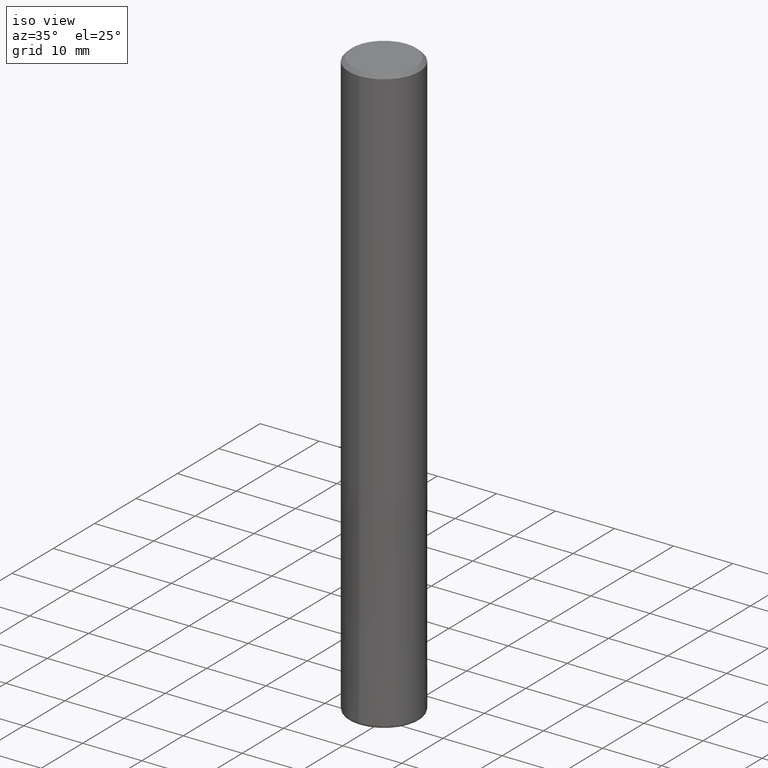
[diagram: clean part render]
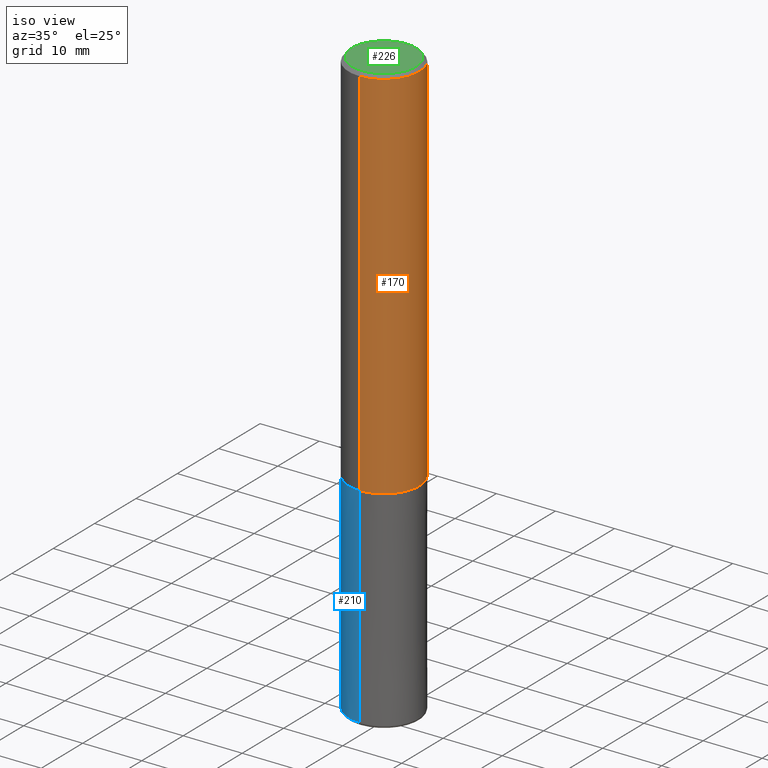
[diagram: same view with three faces highlighted in distinct colors, each labeled with its STEP entity id]
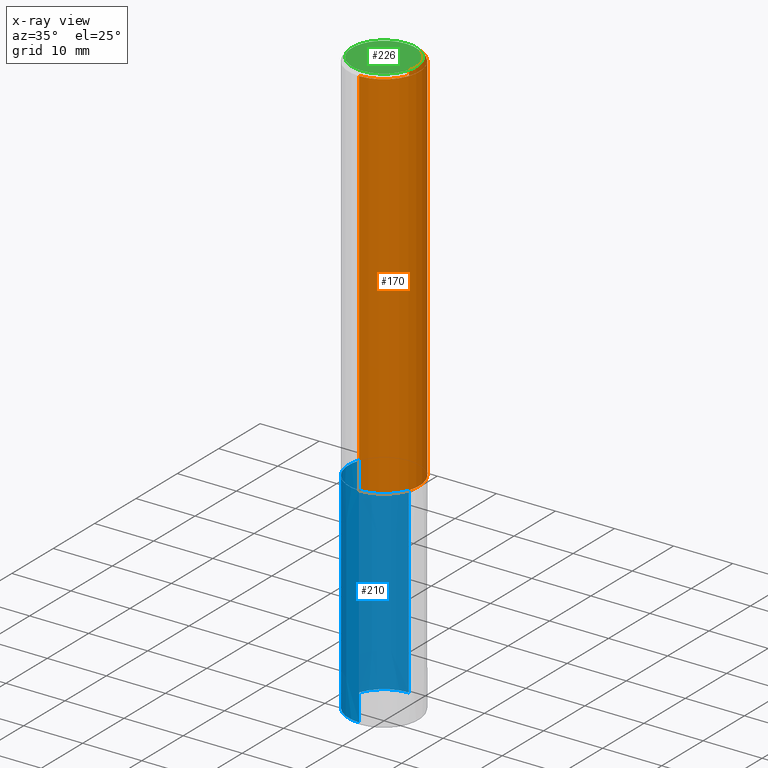
[diagram: x-ray of the same camera — body ghosted, the three highlighted faces saturated]
A machine part, iso view with three faces highlighted in distinct colors.
The next image is the same camera in x-ray (body ghosted, the three faces saturated) — at least one of them is partly hidden behind the body in this view.
Their STEP definitions:

[orange] entity #170 — the highlighted cylindrical surface (partial cylindrical patch) has radius 6 mm, axis along (-0, -0, 1).
#106=VERTEX_POINT('',#267);
#138=EDGE_CURVE('',#106,#214,#301,.T.);
#160=EDGE_CURVE('',#106,#222,#325,.T.);
#170=ADVANCED_FACE('',(#335),#336,.T.);
#178=EDGE_CURVE('',#194,#214,#346,.T.);
#194=VERTEX_POINT('',#364);
#214=VERTEX_POINT('',#386);
#218=EDGE_CURVE('',#222,#194,#391,.T.);
#222=VERTEX_POINT('',#397);
#267=CARTESIAN_POINT('',(0.0,6.0,-0.600000000000001));
#301=CIRCLE('',#487,6.0);
#325=LINE('',#522,#523);
#335=FACE_OUTER_BOUND('',#535,.T.);
#336=CYLINDRICAL_SURFACE('',#536,6.0);
#346=LINE('',#547,#548);
#364=CARTESIAN_POINT('',(7.34763812293426E-016,-6.0,-64.0));
#386=CARTESIAN_POINT('',(7.34763812293426E-016,-6.0,-0.600000000000001));
#391=CIRCLE('',#600,6.0);
#397=CARTESIAN_POINT('',(0.0,6.0,-64.0));
#487=AXIS2_PLACEMENT_3D('',#682,#683,#684);
#522=CARTESIAN_POINT('',(-7.34763812293426E-016,6.0,-32.3));
#523=VECTOR('',#711,1.0);
#535=EDGE_LOOP('',(#723,#724,#725,#726));
#536=AXIS2_PLACEMENT_3D('',#727,#728,#729);
#547=CARTESIAN_POINT('',(7.34763812293426E-016,-6.0,-32.3));
#548=VECTOR('',#738,1.0);
#600=AXIS2_PLACEMENT_3D('',#789,#790,#791);
#682=CARTESIAN_POINT('',(0.0,0.0,-0.600000000000001));
#683=DIRECTION('',(0.0,0.0,-1.0));
#684=DIRECTION('',(0.0,1.0,0.0));
#711=DIRECTION('',(0.0,0.0,-1.0));
#723=ORIENTED_EDGE('',*,*,#160,.F.);
#724=ORIENTED_EDGE('',*,*,#138,.T.);
#725=ORIENTED_EDGE('',*,*,#178,.F.);
#726=ORIENTED_EDGE('',*,*,#218,.F.);
#727=CARTESIAN_POINT('',(0.0,0.0,-32.3));
#728=DIRECTION('',(-0.0,-0.0,1.0));
#729=DIRECTION('',(0.0,1.0,0.0));
#738=DIRECTION('',(-0.0,-0.0,1.0));
#789=CARTESIAN_POINT('',(0.0,0.0,-64.0));
#790=DIRECTION('',(0.0,0.0,-1.0));
#791=DIRECTION('',(0.0,1.0,0.0));

[blue] entity #210 — the highlighted conical surface has half-angle 0 deg.
#126=EDGE_CURVE('',#180,#206,#289,.T.);
#142=EDGE_CURVE('',#206,#184,#305,.T.);
#156=EDGE_CURVE('',#234,#180,#321,.T.);
#180=VERTEX_POINT('',#348);
#184=VERTEX_POINT('',#353);
#206=VERTEX_POINT('',#377);
#210=ADVANCED_FACE('',(#381),#382,.T.);
#234=VERTEX_POINT('',#413);
#238=EDGE_CURVE('',#234,#184,#417,.T.);
#289=CIRCLE('',#468,5.9999);
#305=LINE('',#494,#495);
#321=LINE('',#514,#515);
#348=CARTESIAN_POINT('',(7.34751566229888E-016,-5.9999,-64.0));
#353=CARTESIAN_POINT('',(0.0,6.0,-99.5));
#377=CARTESIAN_POINT('',(0.0,5.9999,-64.0));
#381=FACE_OUTER_BOUND('',#589,.T.);
#382=CONICAL_SURFACE('',#590,5.99995,2.81690140843669E-006);
#413=CARTESIAN_POINT('',(7.34763812293426E-016,-6.0,-99.5));
#417=CIRCLE('',#630,6.0);
#468=AXIS2_PLACEMENT_3D('',#671,#672,#673);
#494=CARTESIAN_POINT('',(-7.34757689261658E-016,5.99995,-81.75));
#495=VECTOR('',#686,1.0);
#514=CARTESIAN_POINT('',(7.34757689261657E-016,-5.99995,-81.75));
#515=VECTOR('',#709,1.0);
#589=EDGE_LOOP('',(#774,#775,#776,#777));
#590=AXIS2_PLACEMENT_3D('',#778,#779,#780);
#630=AXIS2_PLACEMENT_3D('',#831,#832,#833);
#671=CARTESIAN_POINT('',(0.0,0.0,-64.0));
#672=DIRECTION('',(0.0,0.0,-1.0));
#673=DIRECTION('',(0.0,1.0,0.0));
#686=DIRECTION('',(-3.44959536285821E-022,2.81690140843296E-006,-0.999999999996033));
#709=DIRECTION('',(-3.44959536285821E-022,2.81690140843296E-006,0.999999999996033));
#774=ORIENTED_EDGE('',*,*,#142,.T.);
#775=ORIENTED_EDGE('',*,*,#238,.F.);
#776=ORIENTED_EDGE('',*,*,#156,.T.);
#777=ORIENTED_EDGE('',*,*,#126,.T.);
#778=CARTESIAN_POINT('',(0.0,0.0,-81.75));
#779=DIRECTION('',(0.0,-0.0,-1.0));
#780=DIRECTION('',(0.0,1.0,0.0));
#831=CARTESIAN_POINT('',(0.0,0.0,-99.5));
#832=DIRECTION('',(0.0,0.0,-1.0));
#833=DIRECTION('',(0.0,1.0,0.0));

[green] entity #226 — the highlighted planar face has unit normal (-0, 0, 1).
#108=VERTEX_POINT('',#269);
#116=VERTEX_POINT('',#278);
#128=EDGE_CURVE('',#108,#116,#291,.T.);
#224=EDGE_CURVE('',#116,#108,#399,.T.);
#226=ADVANCED_FACE('',(#401),#402,.T.);
#269=CARTESIAN_POINT('',(0.0,5.4,0.0));
#278=CARTESIAN_POINT('',(6.61287431064084E-016,-5.4,0.0));
#291=CIRCLE('',#471,5.4);
#399=CIRCLE('',#609,5.4);
#401=FACE_OUTER_BOUND('',#611,.T.);
#402=PLANE('',#612);
#471=AXIS2_PLACEMENT_3D('',#674,#675,#676);
#609=AXIS2_PLACEMENT_3D('',#800,#801,#802);
#611=EDGE_LOOP('',(#804,#805));
#612=AXIS2_PLACEMENT_3D('',#806,#807,#808);
#674=CARTESIAN_POINT('',(0.0,0.0,0.0));
#675=DIRECTION('',(0.0,0.0,-1.0));
#676=DIRECTION('',(0.0,1.0,0.0));
#800=CARTESIAN_POINT('',(0.0,0.0,0.0));
#801=DIRECTION('',(0.0,0.0,-1.0));
#802=DIRECTION('',(0.0,1.0,0.0));
#804=ORIENTED_EDGE('',*,*,#128,.F.);
#805=ORIENTED_EDGE('',*,*,#224,.F.);
#806=CARTESIAN_POINT('',(0.0,2.7,0.0));
#807=DIRECTION('',(-0.0,0.0,1.0));
#808=DIRECTION('',(0.0,-1.0,0.0));